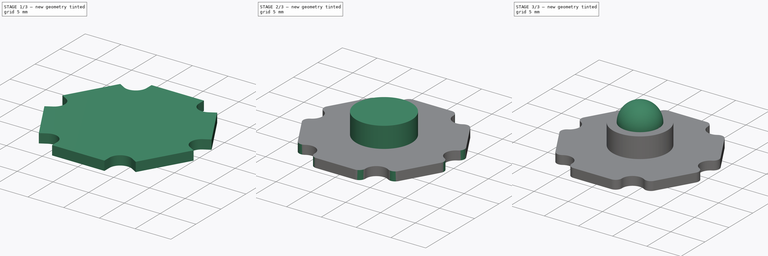
[diagram: build sequence overview — one tinted view per stage of 3, left to right]
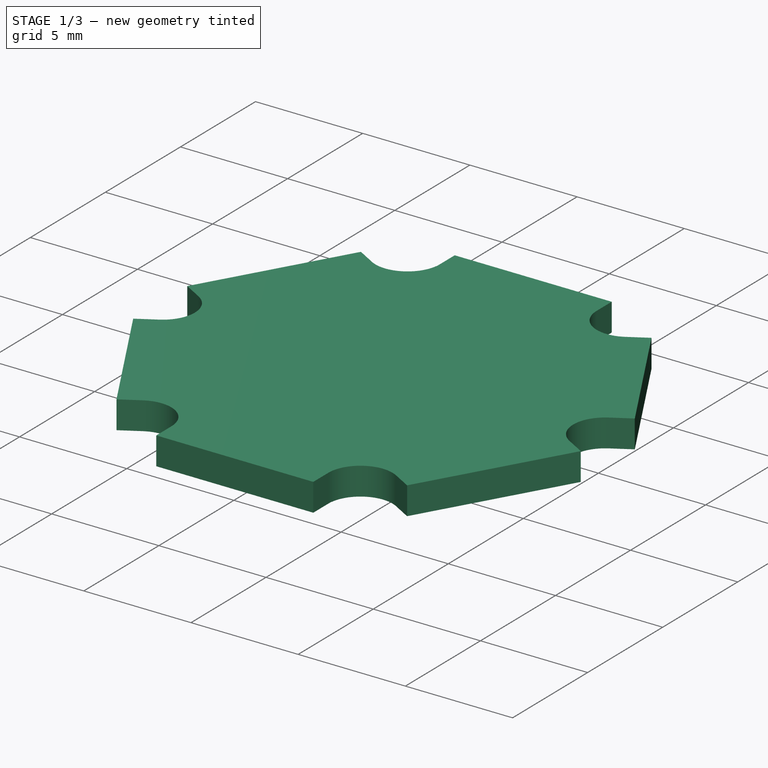
[diagram: stage 1 of 3 — iso view after this stage's code; geometry added in this stage tinted green]
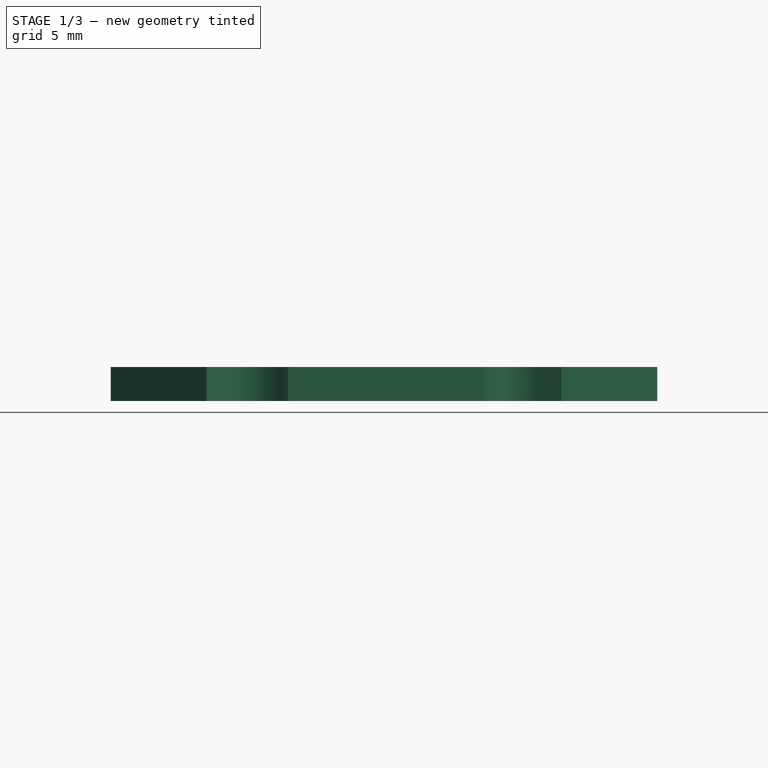
[diagram: stage 1 of 3 — front view after this stage's code; geometry added in this stage tinted green]
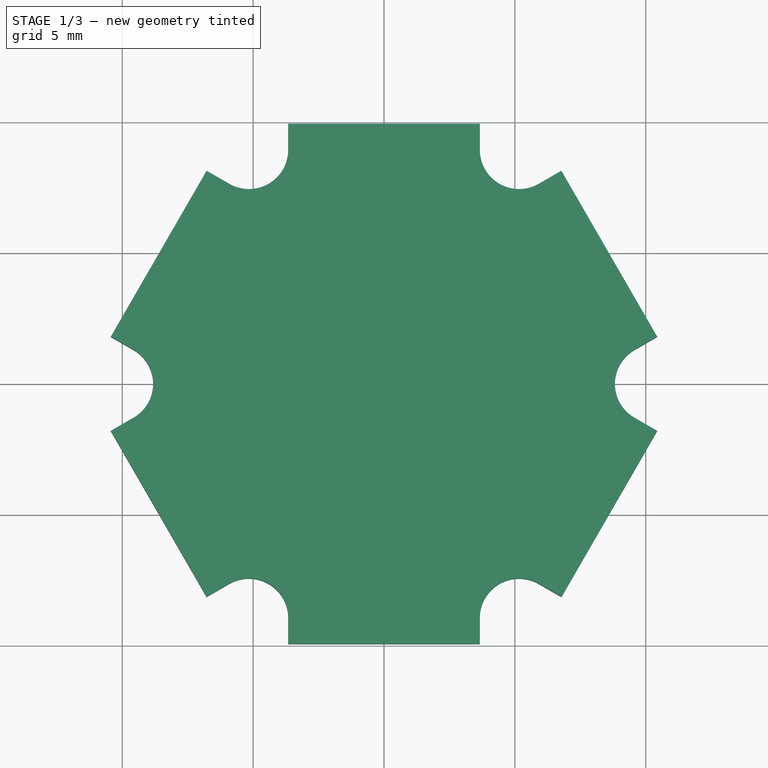
[diagram: stage 1 of 3 — top view after this stage's code; geometry added in this stage tinted green]
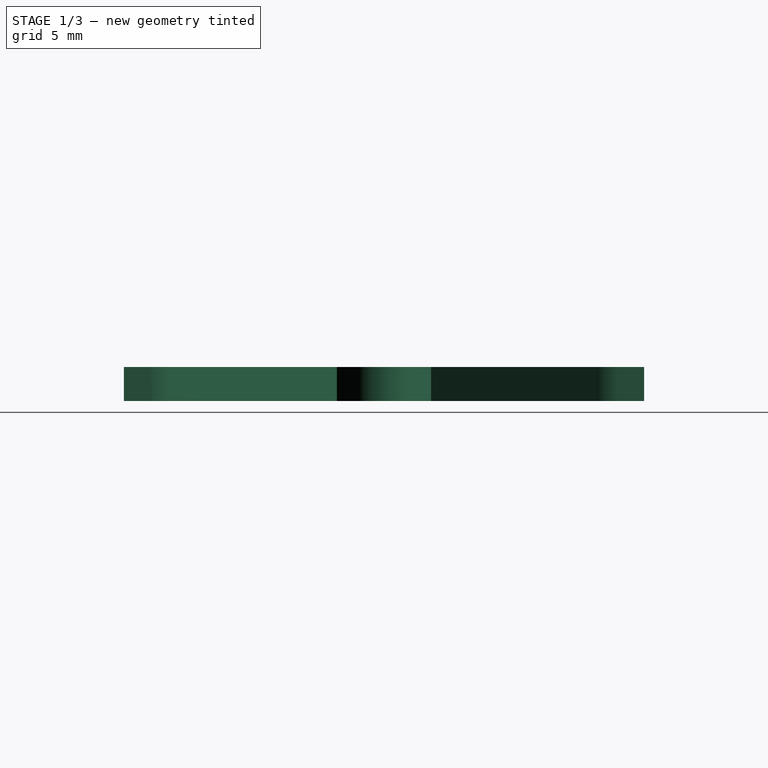
[diagram: stage 1 of 3 — right view after this stage's code; geometry added in this stage tinted green]
FCSTD DOCUMENT  (FreeCAD 0.16RUnknown)
Label: ALULED
License: All rights reserved
LicenseURL: http://en.wikipedia.org/wiki/All_rights_reserved
objects: Sketcher::SketchObject×3, PartDesign::Pad×2, PartDesign::Pocket×1, PartDesign::PolarPattern×1, Part::Fillet×1, Part::Sphere×1, Part::MultiFuse×1, Part::FeaturePython×1
note: 14 computed .brp shape members not serialized (recipe doc carries the construction recipe); baked Part::Feature solids carry a one-line shape summary decoded from their .brp

FEATURE [Sketcher::SketchObject] Sketch  label="Base"
  sketch-geometry (7):
    g0: LineSegment StartX=5.73886 StartY=-9.94 StartZ=0 EndX=11.4777 EndY=0 EndZ=0
    g1: LineSegment StartX=11.4777 StartY=0 StartZ=0 EndX=5.73886 EndY=9.94 EndZ=0
    g2: LineSegment StartX=5.73886 StartY=9.94 StartZ=0 EndX=-5.73886 EndY=9.94 EndZ=0
    g3: LineSegment StartX=-5.73886 StartY=9.94 StartZ=0 EndX=-11.4777 EndY=0 EndZ=0
    g4: LineSegment StartX=-11.4777 StartY=0 StartZ=0 EndX=-5.73886 EndY=-9.94 EndZ=0
    g5: LineSegment StartX=-5.73886 StartY=-9.94 StartZ=0 EndX=5.73886 EndY=-9.94 EndZ=0
    g6: Circle [constr] CenterX=0 CenterY=0 CenterZ=0 NormalX=0 NormalY=0 NormalZ=1 Radius=11.4777
  constraints (16):
    c: Coincident(g0,g1)
    c: Coincident(g1,g2)
    c: Coincident(g2,g3)
    c: Coincident(g3,g4)
    c: Coincident(g4,g5)
    c: Coincident(g5,g0)
    c: Equal(g0, g1-g5) x5
    c: PointOnObject(g0,g6)
    c: PointOnObject(g1,g6)
    c: PointOnObject(g2,g6)
    c: PointOnObject(g3,g6)
    c: PointOnObject(g4,g6)
    c: PointOnObject(g5,g6)
    c: Coincident(g6,g-1)
    c: Horizontal(g2)
    c: DistanceY(g0,g1) = 19.88
FEATURE [PartDesign::Pad] Pad  label="Base001"
  Length = 1.3
  Length2 = 100
  Sketch = -> Sketch
  Type = 0
FEATURE [Sketcher::SketchObject] Sketch001  label="BoltSpace"
  Placement = pos=(0,0,1.3) rot=(0,0,1;0rad)
  Support = -> Pad [Face8]
  sketch-geometry (6):
    g0: ArcOfCircle CenterX=10.323 CenterY=0 CenterZ=0 NormalX=0 NormalY=0 NormalZ=1 Radius=1.5 StartAngle=2.0944 EndAngle=4.18879
    g1: LineSegment StartX=9.57302 StartY=1.29904 StartZ=0 EndX=14.0056 EndY=3.85817 EndZ=0
    g2: LineSegment StartX=14.0056 StartY=3.85817 StartZ=0 EndX=14.0056 EndY=-3.85817 EndZ=0
    g3: LineSegment StartX=14.0056 StartY=-3.85817 StartZ=0 EndX=9.57302 EndY=-1.29904 EndZ=0
    g4: LineSegment [constr] StartX=0 StartY=0 StartZ=0 EndX=1.83076 EndY=-3.17096 EndZ=0
    g5: LineSegment [constr] StartX=10.439 StartY=1.79904 StartZ=0 EndX=1.83076 EndY=-3.17096 EndZ=0
  constraints (17):
    c: Coincident(g1,g2)
    c: Coincident(g2,g3)
    c: Coincident(g3,g0)
    c: Coincident(g0,g1)
    c: Tangent(g0,g1)
    c: Tangent(g0,g3)
    c: PointOnObject(g0,g-1)
    c: Symmetric(g1,g2,g-1)
    c: Angle(g3,g1) = 1.0472
    c: Coincident(g4,g-1)
    c: Angle(g4,g-1) = 1.0472
    c: PointOnObject(g4,g1)
    c: Coincident(g5,g4)
    c: Perpendicular(g4,g5)
    c: Distance(g5) = 9.94
    c: Distance(g0,g5) = 1
    c: Radius(g0) = 1.5
FEATURE [PartDesign::Pocket] Pocket  label="BoltSpace001"
  Length = 5
  Sketch = -> Sketch001
  Type = 1
FEATURE [PartDesign::PolarPattern] PolarPattern  label="BoltSpaces"
  Angle = 360
  Axis = -> Sketch001 [N_Axis]
  Occurrences = 6
  Originals = -> [Pocket]
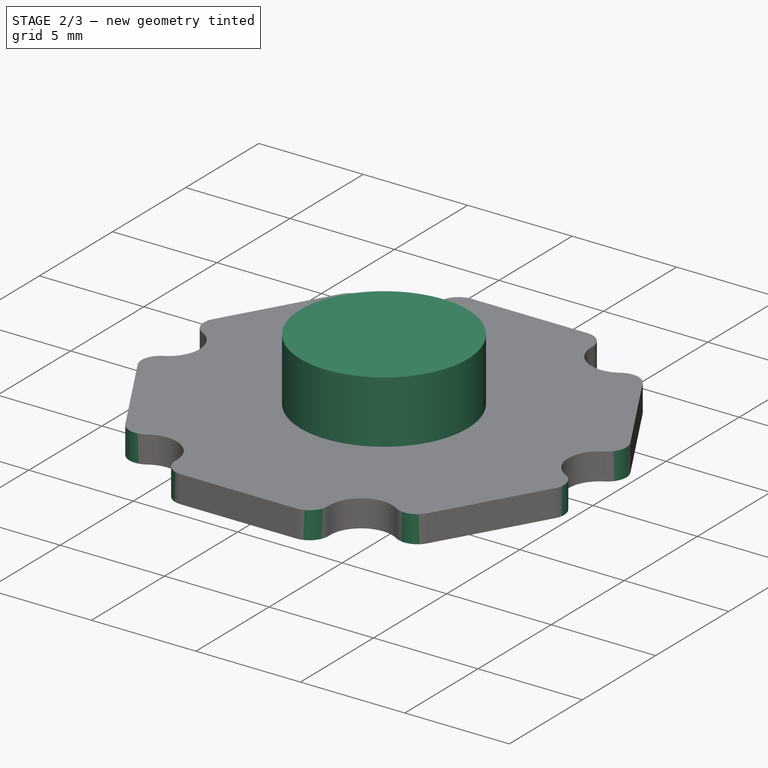
[diagram: stage 2 of 3 — iso view after this stage's code; geometry added in this stage tinted green]
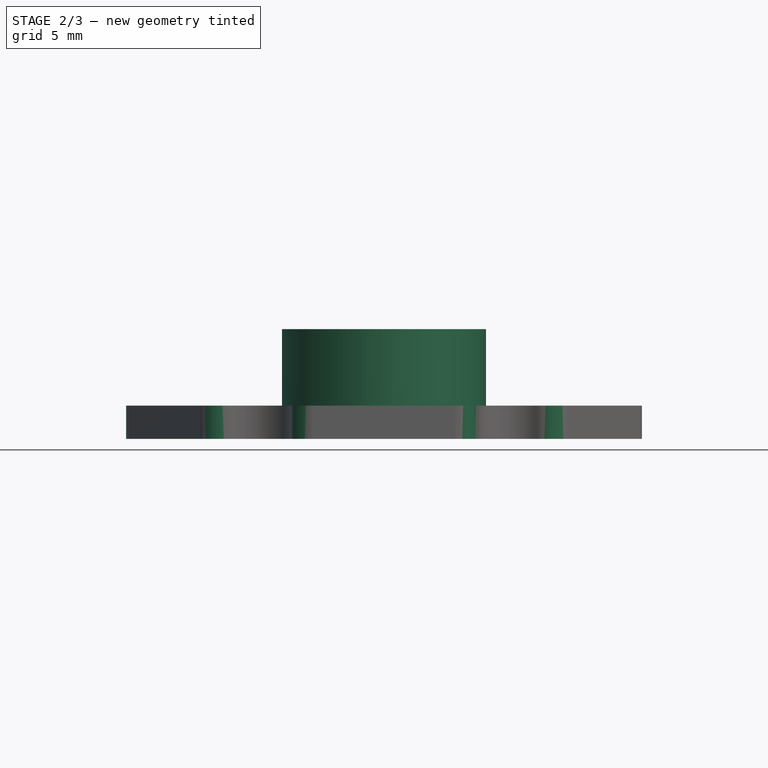
[diagram: stage 2 of 3 — front view after this stage's code; geometry added in this stage tinted green]
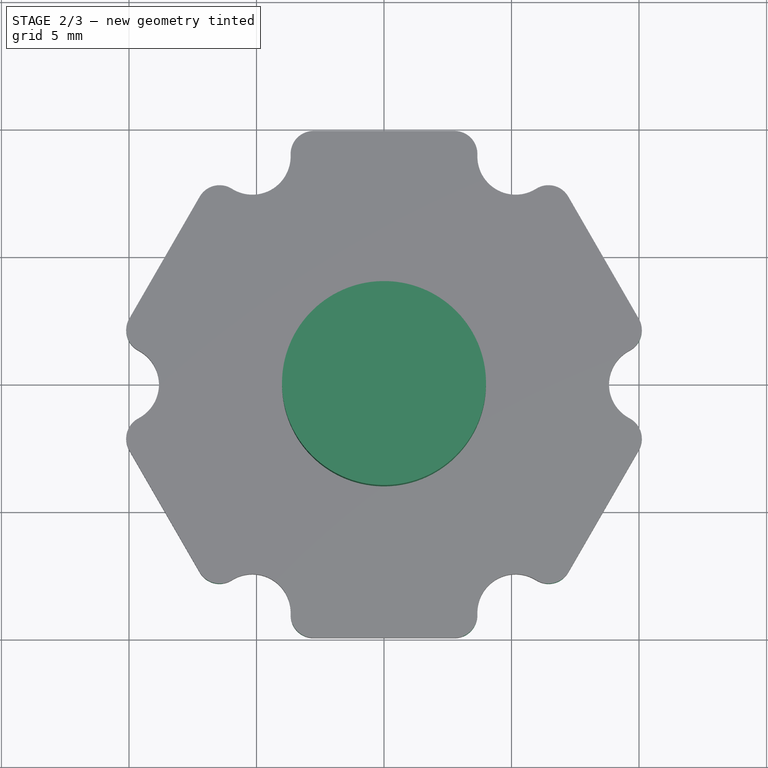
[diagram: stage 2 of 3 — top view after this stage's code; geometry added in this stage tinted green]
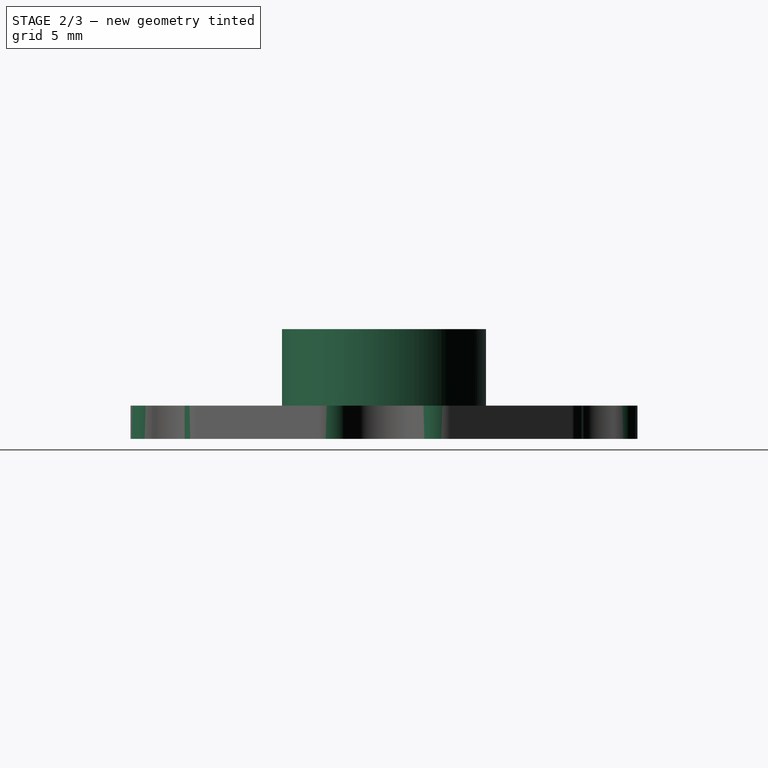
[diagram: stage 2 of 3 — right view after this stage's code; geometry added in this stage tinted green]
FEATURE [Part::Fillet] Fillet
  Base = -> PolarPattern
  Edges = 12 edges r=0.9: [Edge2,Edge4,Edge53,Edge56,Edge57,Edge60,Edge61,Edge64,Edge65,Edge68,Edge69,Edge72]
FEATURE [Sketcher::SketchObject] Sketch002  label="LEDBody"
  Placement = pos=(0,0,1.3) rot=(0,0,1;0rad)
  Support = -> Fillet [Face5]
  sketch-geometry (1):
    g0: Circle CenterX=0 CenterY=0 CenterZ=0 NormalX=0 NormalY=0 NormalZ=1 Radius=4
  constraints (2):
    c: Coincident(g0,g-1)
    c: Radius(g0) = 4
FEATURE [PartDesign::Pad] Pad001  label="LEDBody001"
  Length = 3
  Length2 = 100
  Sketch = -> Sketch002
  Type = 0
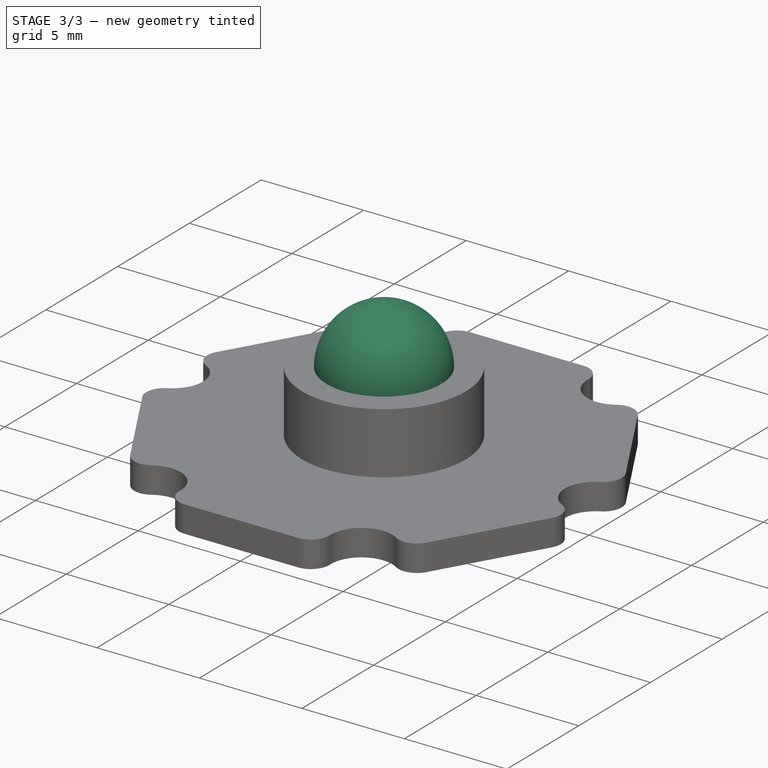
[diagram: stage 3 of 3 — iso view after this stage's code; geometry added in this stage tinted green]
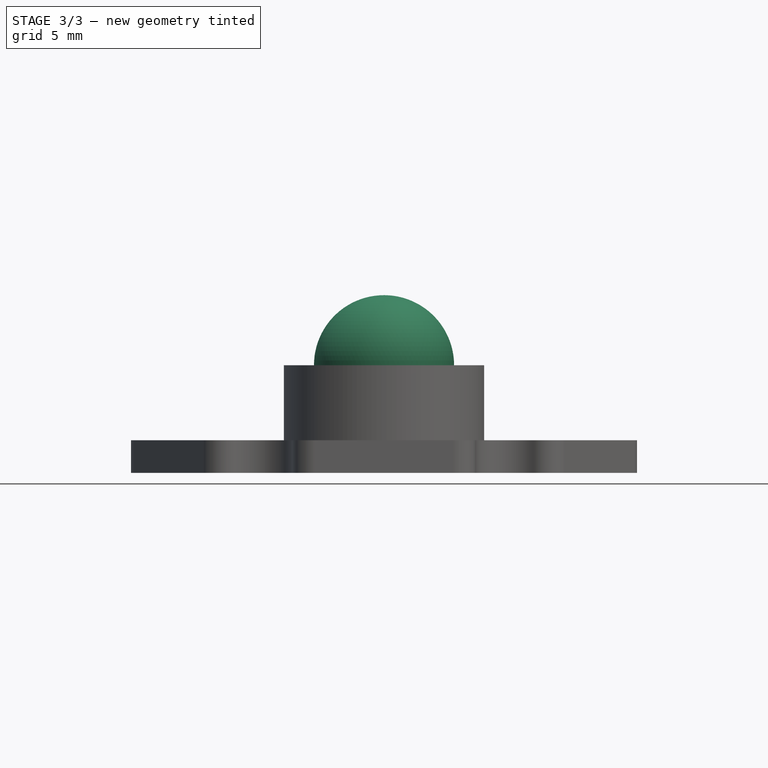
[diagram: stage 3 of 3 — front view after this stage's code; geometry added in this stage tinted green]
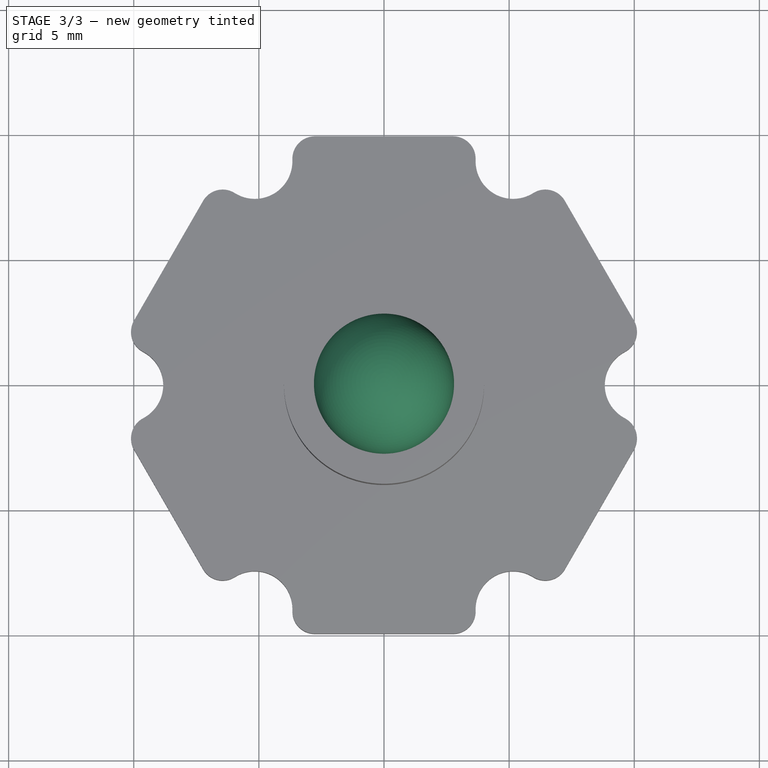
[diagram: stage 3 of 3 — top view after this stage's code; geometry added in this stage tinted green]
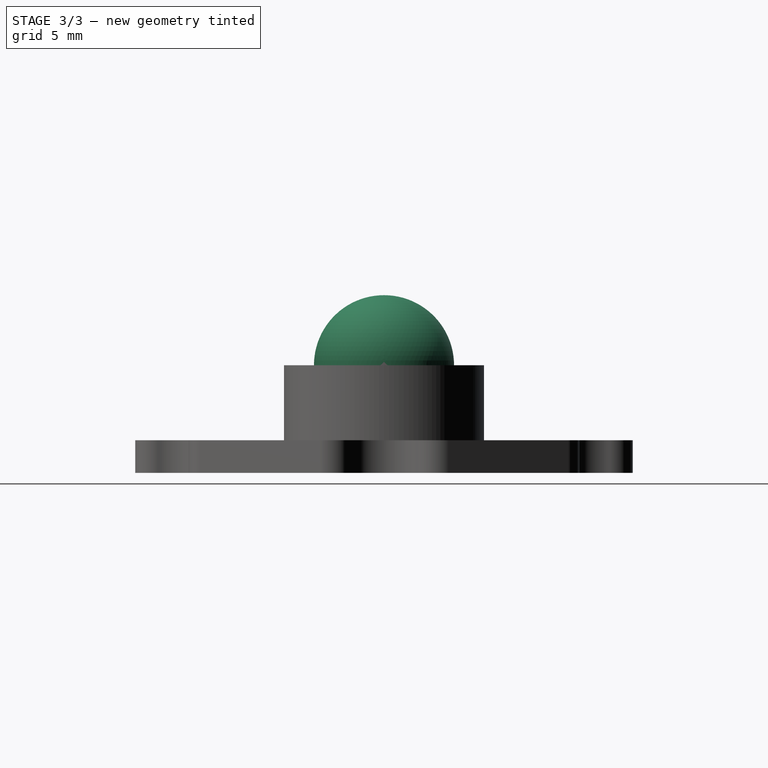
[diagram: stage 3 of 3 — right view after this stage's code; geometry added in this stage tinted green]
FEATURE [Part::Sphere] Sphere  label="LEDBall"
  Angle1 = -90
  Angle2 = 90
  Angle3 = 360
  Placement = pos=(0,0,4.3) rot=(0,0,1;0rad)
  Radius = 2.8
  expr: Placement.Base.z = Base001.Length + LEDBody001.Length
FEATURE [Part::MultiFuse] Fusion  label="LEDballFusion"
  Shapes = -> [Sphere,Pad001]
FEATURE [Part::FeaturePython] Clone  label="ALULED"  # Draft clone (typed FeaturePython)
  Objects = -> [Fusion]
  Scale = (1,1,1)
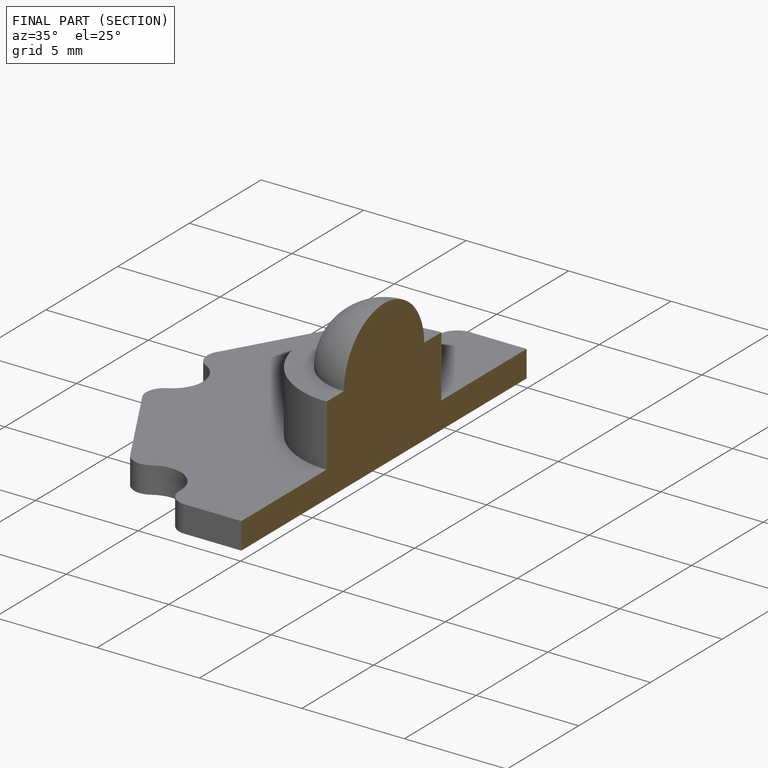
[diagram: finished part — half-section view (interior)]
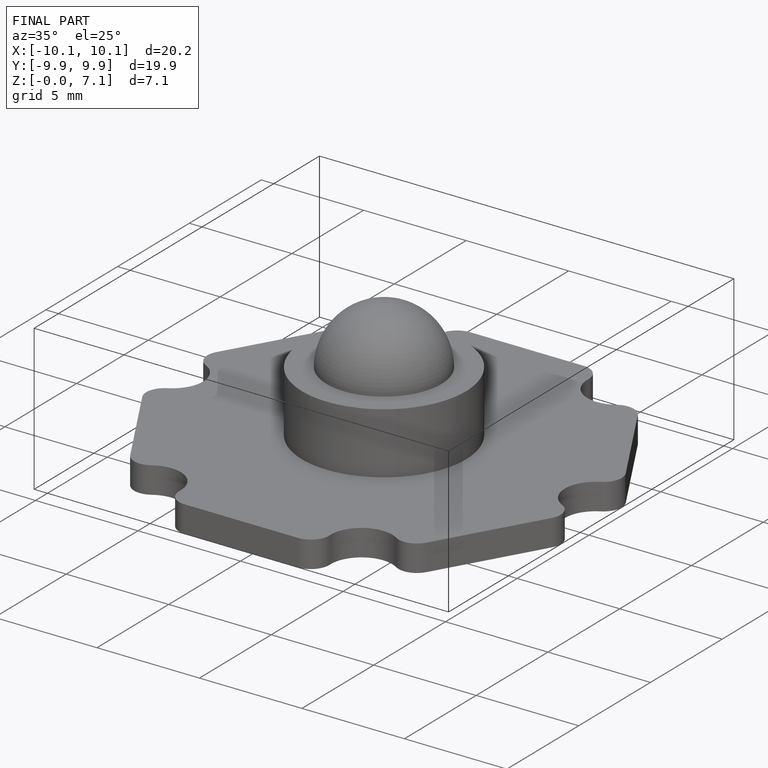
[diagram: finished part — iso view with bounding-box wireframe]
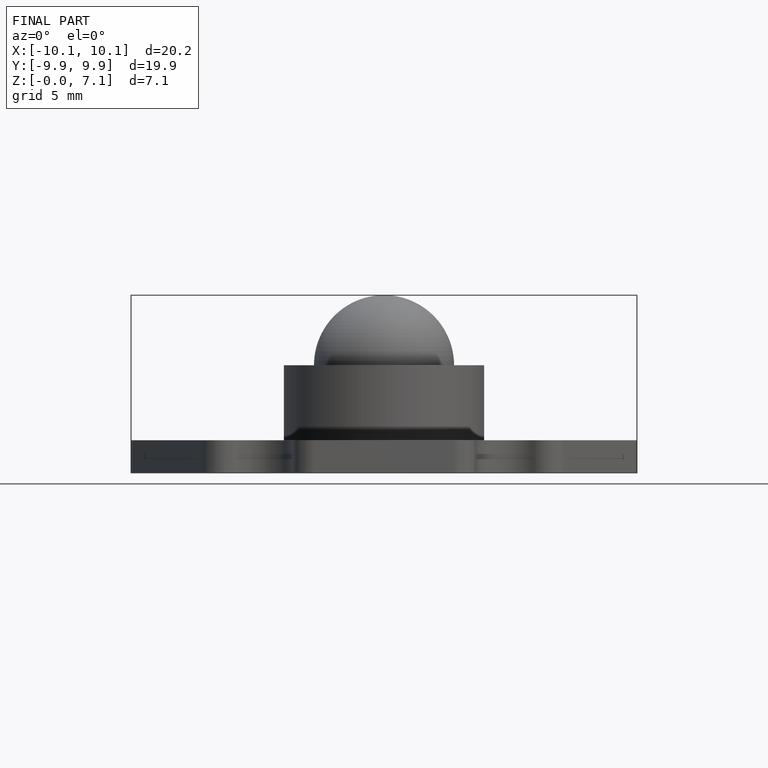
[diagram: finished part — front view with bounding-box wireframe]
